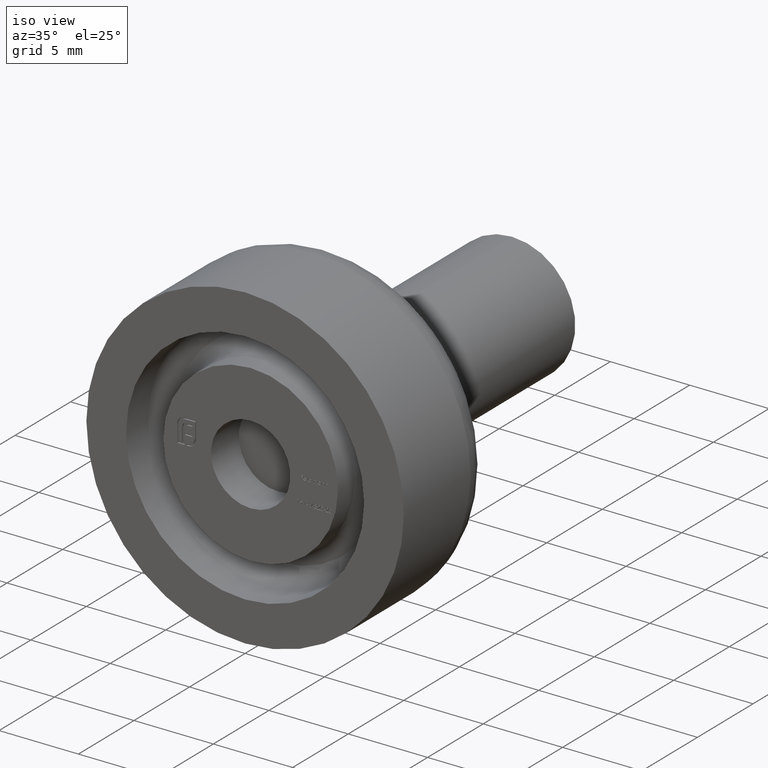
[diagram: clean part render]
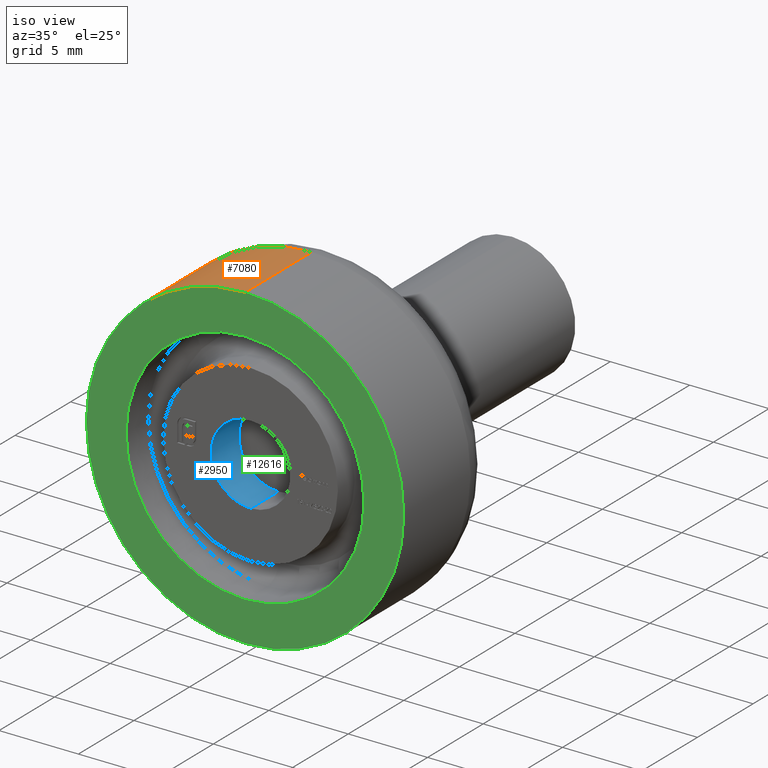
[diagram: same view with three faces highlighted in distinct colors, each labeled with its STEP entity id]
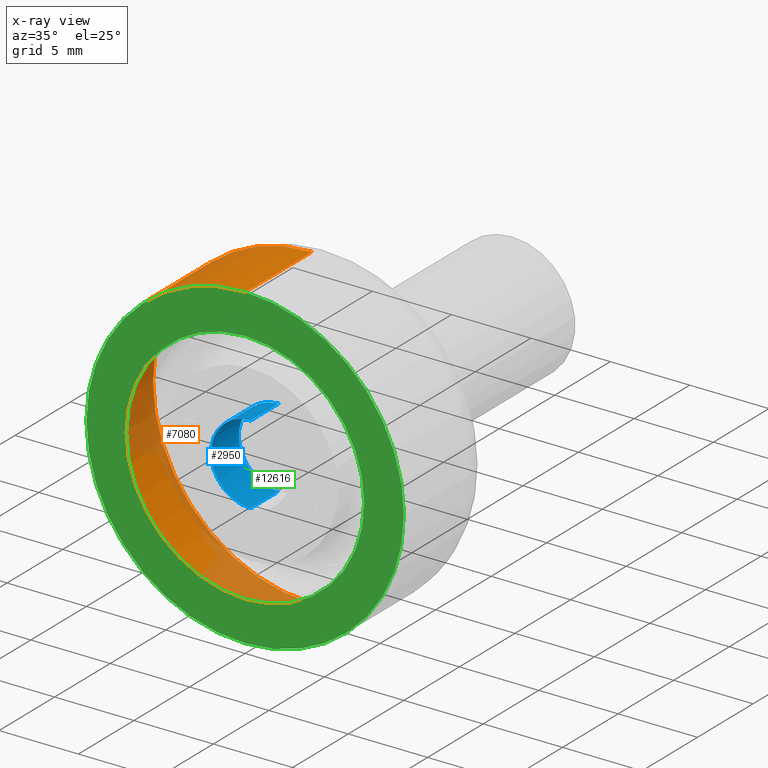
[diagram: x-ray of the same camera — body ghosted, the three highlighted faces saturated]
A machine part, iso view with three faces highlighted in distinct colors.
The next image is the same camera in x-ray (body ghosted, the three faces saturated) — at least one of them is partly hidden behind the body in this view.
Their STEP definitions:

[orange] entity #7080 — the highlighted cylindrical surface (partial cylindrical patch) has radius 10 mm, axis along (-0, -1, -0).
#47 = VERTEX_POINT ( 'NONE', #13946 ) ;
#109 = EDGE_CURVE ( 'NONE', #5502, #370, #13764, .T. ) ;
#221 = CIRCLE ( 'NONE', #6963, 10.00000000000000000 ) ;
#370 = VERTEX_POINT ( 'NONE', #613 ) ;
#403 = DIRECTION ( 'NONE',  ( 0.000000000000000000, 0.000000000000000000, -1.000000000000000000 ) ) ;
#485 = LINE ( 'NONE', #13053, #8929 ) ;
#613 = CARTESIAN_POINT ( 'NONE',  ( 0.000000000000000000, -1.530808498934191521E-15, -10.00000000000000000 ) ) ;
#2126 = DIRECTION ( 'NONE',  ( -0.000000000000000000, -1.000000000000000000, -0.000000000000000000 ) ) ;
#2131 = DIRECTION ( 'NONE',  ( -0.000000000000000000, -1.000000000000000000, -0.000000000000000000 ) ) ;
#3343 = CARTESIAN_POINT ( 'NONE',  ( 0.000000000000000000, -1.530808498934191521E-15, 0.000000000000000000 ) ) ;
#4045 = CARTESIAN_POINT ( 'NONE',  ( 0.000000000000000000, 5.999999999999998224, -10.00000000000000000 ) ) ;
#4123 = CARTESIAN_POINT ( 'NONE',  ( 0.000000000000000000, 0.000000000000000000, 0.000000000000000000 ) ) ;
#4240 = FACE_OUTER_BOUND ( 'NONE', #5084, .T. ) ;
#4785 = AXIS2_PLACEMENT_3D ( 'NONE', #4123, #8791, #403 ) ;
#5084 = EDGE_LOOP ( 'NONE', ( #9476, #10568, #10868, #12092 ) ) ;
#5502 = VERTEX_POINT ( 'NONE', #4045 ) ;
#5664 = DIRECTION ( 'NONE',  ( -0.000000000000000000, -1.000000000000000000, -0.000000000000000000 ) ) ;
#6247 = CARTESIAN_POINT ( 'NONE',  ( 0.000000000000000000, 5.999999999999998224, 0.000000000000000000 ) ) ;
#6412 = DIRECTION ( 'NONE',  ( 0.000000000000000000, 0.000000000000000000, 1.000000000000000000 ) ) ;
#6430 = EDGE_CURVE ( 'NONE', #47, #370, #9134, .T. ) ;
#6963 = AXIS2_PLACEMENT_3D ( 'NONE', #6247, #8652, #6412 ) ;
#7080 = ADVANCED_FACE ( 'NONE', ( #4240 ), #11754, .T. ) ;
#8061 = EDGE_CURVE ( 'NONE', #10078, #47, #485, .T. ) ;
#8121 = CARTESIAN_POINT ( 'NONE',  ( 0.000000000000000000, 0.000000000000000000, -10.00000000000000000 ) ) ;
#8652 = DIRECTION ( 'NONE',  ( -0.000000000000000000, -1.000000000000000000, -0.000000000000000000 ) ) ;
#8791 = DIRECTION ( 'NONE',  ( -0.000000000000000000, -1.000000000000000000, -0.000000000000000000 ) ) ;
#8929 = VECTOR ( 'NONE', #2131, 1000.000000000000000 ) ;
#9134 = CIRCLE ( 'NONE', #10830, 10.00000000000000000 ) ;
#9476 = ORIENTED_EDGE ( 'NONE', *, *, #8061, .F. ) ;
#10078 = VERTEX_POINT ( 'NONE', #13295 ) ;
#10508 = DIRECTION ( 'NONE',  ( 0.000000000000000000, 0.000000000000000000, -1.000000000000000000 ) ) ;
#10568 = ORIENTED_EDGE ( 'NONE', *, *, #12788, .T. ) ;
#10830 = AXIS2_PLACEMENT_3D ( 'NONE', #3343, #2126, #10508 ) ;
#10868 = ORIENTED_EDGE ( 'NONE', *, *, #109, .T. ) ;
#10948 = VECTOR ( 'NONE', #5664, 1000.000000000000000 ) ;
#11754 = CYLINDRICAL_SURFACE ( 'NONE', #4785, 10.00000000000000000 ) ;
#12092 = ORIENTED_EDGE ( 'NONE', *, *, #6430, .F. ) ;
#12788 = EDGE_CURVE ( 'NONE', #10078, #5502, #221, .T. ) ;
#13053 = CARTESIAN_POINT ( 'NONE',  ( 1.224646799147353256E-15, 0.000000000000000000, 10.00000000000000000 ) ) ;
#13295 = CARTESIAN_POINT ( 'NONE',  ( 1.224646799147353256E-15, 5.999999999999998224, 10.00000000000000000 ) ) ;
#13764 = LINE ( 'NONE', #8121, #10948 ) ;
#13946 = CARTESIAN_POINT ( 'NONE',  ( 1.224646799147353256E-15, -1.530808498934191521E-15, 10.00000000000000000 ) ) ;

[blue] entity #2950 — the highlighted cylindrical surface (partial cylindrical patch) has radius 2.5 mm, axis along (-0, 1, -0).
#459 = DIRECTION ( 'NONE',  ( 0.000000000000000000, 0.000000000000000000, -1.000000000000000000 ) ) ;
#849 = DIRECTION ( 'NONE',  ( -0.000000000000000000, 1.000000000000000000, -0.000000000000000000 ) ) ;
#947 = FACE_OUTER_BOUND ( 'NONE', #4895, .T. ) ;
#1388 = CARTESIAN_POINT ( 'NONE',  ( 0.000000000000000000, 0.5000000000000004441, 2.500000000000000000 ) ) ;
#2088 = EDGE_CURVE ( 'NONE', #10479, #8810, #12618, .T. ) ;
#2387 = CARTESIAN_POINT ( 'NONE',  ( 0.000000000000000000, -15.55634918610404682, 0.000000000000000000 ) ) ;
#2486 = ORIENTED_EDGE ( 'NONE', *, *, #15254, .T. ) ;
#2950 = ADVANCED_FACE ( 'NONE', ( #947 ), #13358, .F. ) ;
#3327 = DIRECTION ( 'NONE',  ( 0.000000000000000000, 0.000000000000000000, -1.000000000000000000 ) ) ;
#3937 = LINE ( 'NONE', #13473, #4858 ) ;
#3981 = DIRECTION ( 'NONE',  ( -0.000000000000000000, -1.000000000000000000, -0.000000000000000000 ) ) ;
#4405 = CARTESIAN_POINT ( 'NONE',  ( 0.000000000000000000, 2.999999999999999112, 0.000000000000000000 ) ) ;
#4503 = ORIENTED_EDGE ( 'NONE', *, *, #2088, .T. ) ;
#4838 = CIRCLE ( 'NONE', #7605, 2.500000000000000000 ) ;
#4858 = VECTOR ( 'NONE', #12111, 1000.000000000000000 ) ;
#4895 = EDGE_LOOP ( 'NONE', ( #4503, #7228, #2486, #12889 ) ) ;
#6426 = CARTESIAN_POINT ( 'NONE',  ( 0.000000000000000000, 2.999999999999999112, 2.500000000000000000 ) ) ;
#6459 = CARTESIAN_POINT ( 'NONE',  ( 0.000000000000000000, 0.5000000000000004441, 0.000000000000000000 ) ) ;
#7002 = LINE ( 'NONE', #9588, #8708 ) ;
#7228 = ORIENTED_EDGE ( 'NONE', *, *, #14839, .T. ) ;
#7605 = AXIS2_PLACEMENT_3D ( 'NONE', #4405, #849, #3327 ) ;
#7804 = VERTEX_POINT ( 'NONE', #13222 ) ;
#8708 = VECTOR ( 'NONE', #12427, 1000.000000000000000 ) ;
#8810 = VERTEX_POINT ( 'NONE', #11875 ) ;
#9588 = CARTESIAN_POINT ( 'NONE',  ( 0.000000000000000000, -15.55634918610404682, 2.500000000000000000 ) ) ;
#9610 = EDGE_CURVE ( 'NONE', #10479, #13951, #7002, .T. ) ;
#10479 = VERTEX_POINT ( 'NONE', #1388 ) ;
#11490 = AXIS2_PLACEMENT_3D ( 'NONE', #6459, #3981, #459 ) ;
#11697 = AXIS2_PLACEMENT_3D ( 'NONE', #2387, #14669, #14824 ) ;
#11875 = CARTESIAN_POINT ( 'NONE',  ( 3.061616997868383141E-16, 0.5000000000000004441, -2.500000000000000000 ) ) ;
#12111 = DIRECTION ( 'NONE',  ( -0.000000000000000000, 1.000000000000000000, -0.000000000000000000 ) ) ;
#12427 = DIRECTION ( 'NONE',  ( -0.000000000000000000, 1.000000000000000000, -0.000000000000000000 ) ) ;
#12618 = CIRCLE ( 'NONE', #11490, 2.500000000000000000 ) ;
#12889 = ORIENTED_EDGE ( 'NONE', *, *, #9610, .F. ) ;
#13222 = CARTESIAN_POINT ( 'NONE',  ( 3.061616997868383141E-16, 2.999999999999999112, -2.500000000000000000 ) ) ;
#13358 = CYLINDRICAL_SURFACE ( 'NONE', #11697, 2.500000000000000000 ) ;
#13473 = CARTESIAN_POINT ( 'NONE',  ( 3.061616997868383141E-16, -15.55634918610404682, -2.500000000000000000 ) ) ;
#13951 = VERTEX_POINT ( 'NONE', #6426 ) ;
#14669 = DIRECTION ( 'NONE',  ( -0.000000000000000000, 1.000000000000000000, -0.000000000000000000 ) ) ;
#14824 = DIRECTION ( 'NONE',  ( 0.000000000000000000, 0.000000000000000000, 1.000000000000000000 ) ) ;
#14839 = EDGE_CURVE ( 'NONE', #8810, #7804, #3937, .T. ) ;
#15254 = EDGE_CURVE ( 'NONE', #7804, #13951, #4838, .T. ) ;

[green] entity #12616 — the highlighted planar face has unit normal (0, -1, -0).
#47 = VERTEX_POINT ( 'NONE', #13946 ) ;
#206 = CIRCLE ( 'NONE', #7383, 10.00000000000000000 ) ;
#302 = EDGE_LOOP ( 'NONE', ( #12283, #1324 ) ) ;
#370 = VERTEX_POINT ( 'NONE', #613 ) ;
#613 = CARTESIAN_POINT ( 'NONE',  ( 0.000000000000000000, -1.530808498934191521E-15, -10.00000000000000000 ) ) ;
#618 = EDGE_CURVE ( 'NONE', #8944, #14755, #11481, .T. ) ;
#1199 = ORIENTED_EDGE ( 'NONE', *, *, #12692, .F. ) ;
#1324 = ORIENTED_EDGE ( 'NONE', *, *, #6430, .T. ) ;
#1472 = CARTESIAN_POINT ( 'NONE',  ( 9.184850993605147944E-16, 0.000000000000000000, 7.500000000000000000 ) ) ;
#2126 = DIRECTION ( 'NONE',  ( -0.000000000000000000, -1.000000000000000000, -0.000000000000000000 ) ) ;
#2272 = CARTESIAN_POINT ( 'NONE',  ( 0.000000000000000000, -1.530808498934191521E-15, 0.000000000000000000 ) ) ;
#2287 = CARTESIAN_POINT ( 'NONE',  ( 0.000000000000000000, 0.000000000000000000, 0.000000000000000000 ) ) ;
#2532 = DIRECTION ( 'NONE',  ( 0.000000000000000000, -1.000000000000000000, -0.000000000000000000 ) ) ;
#2568 = EDGE_CURVE ( 'NONE', #370, #47, #206, .T. ) ;
#2853 = FACE_OUTER_BOUND ( 'NONE', #302, .T. ) ;
#3343 = CARTESIAN_POINT ( 'NONE',  ( 0.000000000000000000, -1.530808498934191521E-15, 0.000000000000000000 ) ) ;
#3615 = DIRECTION ( 'NONE',  ( 0.000000000000000000, 0.000000000000000000, -1.000000000000000000 ) ) ;
#4098 = ORIENTED_EDGE ( 'NONE', *, *, #618, .F. ) ;
#4614 = DIRECTION ( 'NONE',  ( 0.000000000000000000, 0.000000000000000000, -1.000000000000000000 ) ) ;
#5473 = EDGE_LOOP ( 'NONE', ( #4098, #1199 ) ) ;
#5643 = FACE_BOUND ( 'NONE', #5473, .T. ) ;
#6051 = CARTESIAN_POINT ( 'NONE',  ( 0.000000000000000000, 0.000000000000000000, -7.500000000000000000 ) ) ;
#6430 = EDGE_CURVE ( 'NONE', #47, #370, #9134, .T. ) ;
#7383 = AXIS2_PLACEMENT_3D ( 'NONE', #2272, #10754, #4614 ) ;
#8269 = CIRCLE ( 'NONE', #15312, 7.500000000000000000 ) ;
#8596 = CARTESIAN_POINT ( 'NONE',  ( 10.00000000000000000, -7.654042494670957606E-16, 0.000000000000000000 ) ) ;
#8944 = VERTEX_POINT ( 'NONE', #6051 ) ;
#9134 = CIRCLE ( 'NONE', #10830, 10.00000000000000000 ) ;
#9357 = DIRECTION ( 'NONE',  ( 0.000000000000000000, 0.000000000000000000, -1.000000000000000000 ) ) ;
#10508 = DIRECTION ( 'NONE',  ( 0.000000000000000000, 0.000000000000000000, -1.000000000000000000 ) ) ;
#10754 = DIRECTION ( 'NONE',  ( -0.000000000000000000, -1.000000000000000000, -0.000000000000000000 ) ) ;
#10794 = DIRECTION ( 'NONE',  ( 0.000000000000000000, 0.000000000000000000, -1.000000000000000000 ) ) ;
#10830 = AXIS2_PLACEMENT_3D ( 'NONE', #3343, #2126, #10508 ) ;
#10849 = CARTESIAN_POINT ( 'NONE',  ( 0.000000000000000000, 0.000000000000000000, 0.000000000000000000 ) ) ;
#11199 = AXIS2_PLACEMENT_3D ( 'NONE', #2287, #11834, #9357 ) ;
#11308 = AXIS2_PLACEMENT_3D ( 'NONE', #8596, #2532, #3615 ) ;
#11481 = CIRCLE ( 'NONE', #11199, 7.500000000000000000 ) ;
#11834 = DIRECTION ( 'NONE',  ( 0.000000000000000000, -1.000000000000000000, 0.000000000000000000 ) ) ;
#11960 = PLANE ( 'NONE',  #11308 ) ;
#12283 = ORIENTED_EDGE ( 'NONE', *, *, #2568, .T. ) ;
#12616 = ADVANCED_FACE ( 'NONE', ( #5643, #2853 ), #11960, .T. ) ;
#12692 = EDGE_CURVE ( 'NONE', #14755, #8944, #8269, .T. ) ;
#13334 = DIRECTION ( 'NONE',  ( 0.000000000000000000, -1.000000000000000000, 0.000000000000000000 ) ) ;
#13946 = CARTESIAN_POINT ( 'NONE',  ( 1.224646799147353256E-15, -1.530808498934191521E-15, 10.00000000000000000 ) ) ;
#14755 = VERTEX_POINT ( 'NONE', #1472 ) ;
#15312 = AXIS2_PLACEMENT_3D ( 'NONE', #10849, #13334, #10794 ) ;